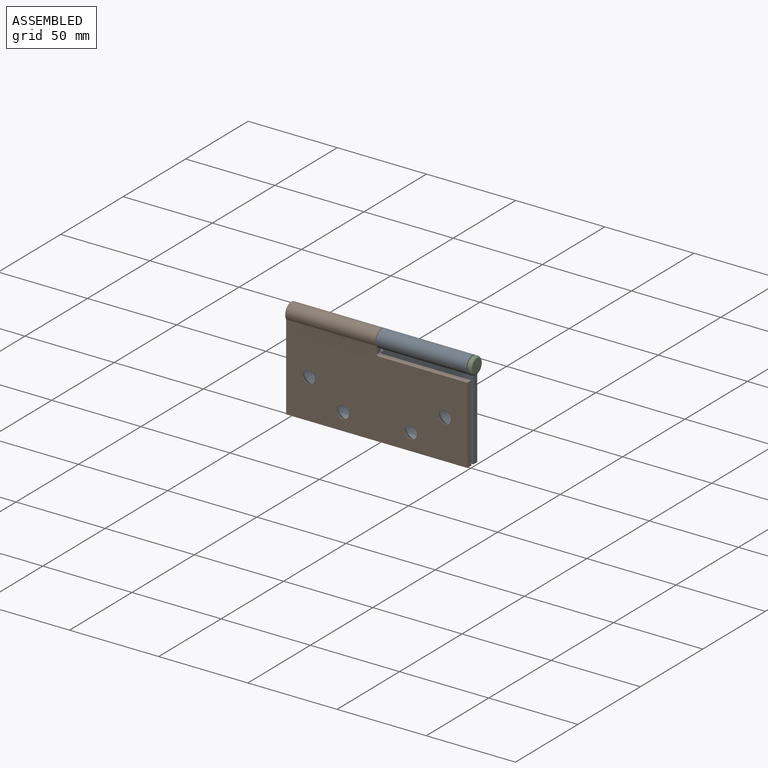
[diagram: assembled view]
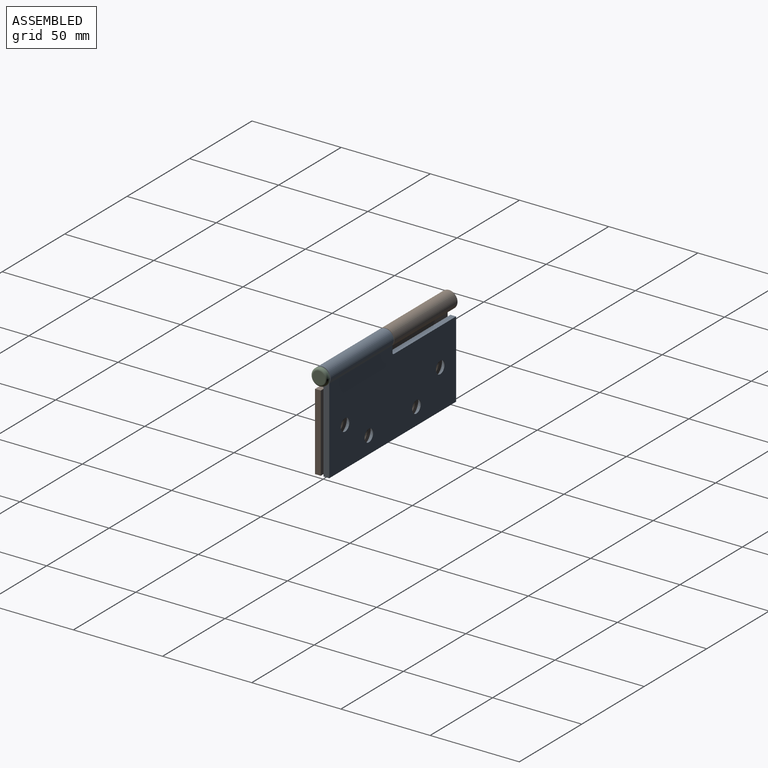
[diagram: assembled view, second angle]
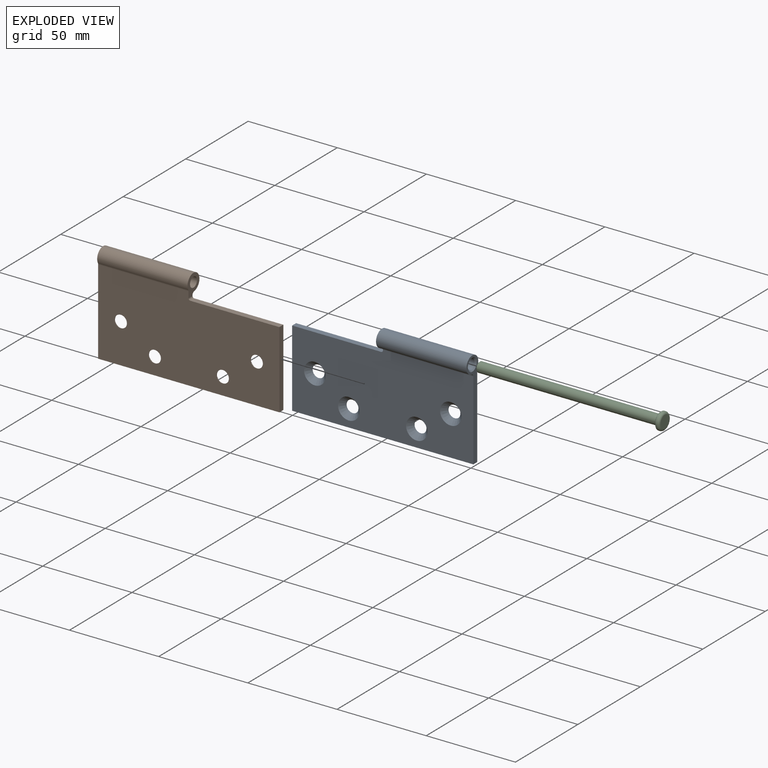
[diagram: exploded view]
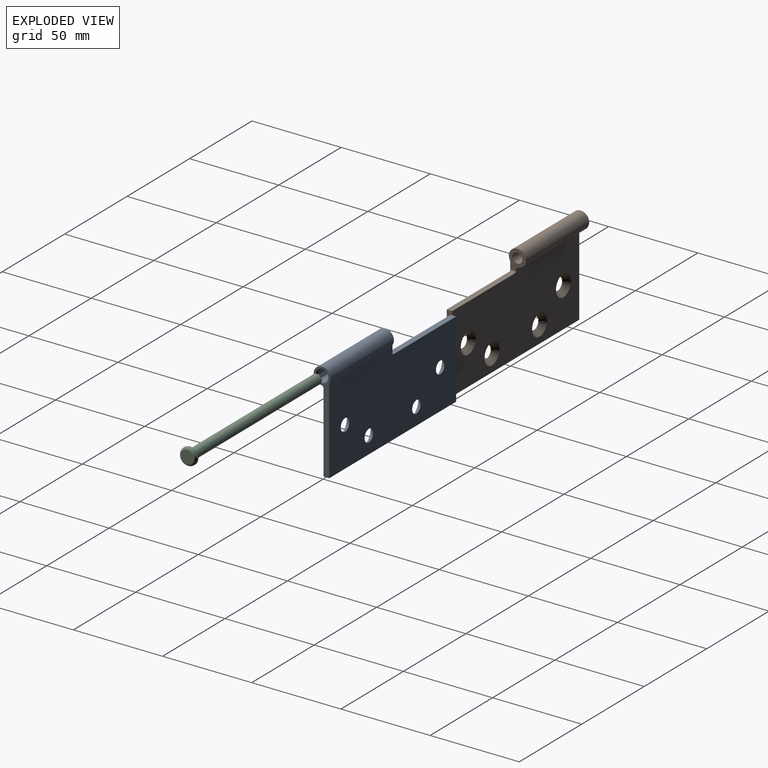
[diagram: exploded view, second angle]
ASSEMBLY  parts=3 mates=2
PART A: 21 faces, bbox 101.6x9.5x55.6 mm
  f0: plane 101.6x3.18mm, normal (0,0,-1), area 322.6mm2, adj f1,f4,f5,f6
  f1: plane 101.6x47.73mm, normal (0,1,0), area 4469.9mm2, adj f0,f5,f6,f7,f9,f10,f11,f12
  f2: cylinder r=4.76mm len=50.67mm, axis (-1,0,0), area 1229mm2, adj f5,f7,f8,f10
  f3: cylinder r=2.79mm len=49.91mm, axis (-1,0,0), area 876.2mm2, adj f10,f20
  f4: plane 101.6x44.5mm, normal (0,-1,0), area 4006.5mm2, adj f0,f5,f6,f8,f9,f10,f15,f16
  f5: plane 55.56x9.53mm, normal (1,0,0), area 180.7mm2, adj f0,f1,f2,f4,f7,f8,f20
  f6: plane 43.18x3.18mm, normal (-1,0,0), area 137.1mm2, adj f0,f1,f4,f9
  f7: cylinder r=1.59mm len=50.67mm, axis (-1,0,0), area 40.7mm2, adj f1,f2,f5,f10
  f8: cylinder r=1.59mm len=50.67mm, axis (-1,0,0), area 116.3mm2, adj f2,f4,f5,f10
  f9: plane 49.91x3.18mm, normal (0,0,1), area 158.5mm2, adj f1,f4,f6,f15
  f10: plane 11.37x9.53mm, normal (-1,0,0), area 55.6mm2, adj f1,f2,f3,f4,f7,f8,f15
  f11: cylinder r=3.43mm len=6.86mm, axis (0,1,0), area 5.5mm2, adj f1,f17
  f12: cylinder r=3.43mm len=6.86mm, axis (0,1,0), area 5.5mm2, adj f1,f18
  f13: cylinder r=3.43mm len=6.86mm, axis (0,1,0), area 5.5mm2, adj f1,f16
  f14: cylinder r=3.43mm len=6.86mm, axis (0,1,0), area 5.5mm2, adj f1,f19
  f15: cylinder r=1.02mm len=3.18mm, axis (0,1,0), area 5.1mm2, adj f1,f4,f9,f10
  f16: cone r=5.97mm half-angle=41deg, axis (0,-1,0), area 114.3mm2, adj f4,f13
  f17: cone r=5.97mm half-angle=41deg, axis (0,-1,0), area 114.3mm2, adj f4,f11
  f18: cone r=5.97mm half-angle=41deg, axis (0,-1,0), area 114.3mm2, adj f4,f12
  f19: cone r=5.97mm half-angle=41deg, axis (0,-1,0), area 114.3mm2, adj f4,f14
  f20: cone r=2.79mm half-angle=45deg, axis (1,0,0), area 21.5mm2, adj f3,f5
PART B: same geometry as A
PART C: 9 faces, bbox 104.1x10.3x10.3 mm
  f0: cylinder r=2.78mm len=100.33mm, axis (-1,0,0), area 1751.3mm2, adj f7,f8
  f1: plane 4.54x4.54mm, normal (-1,0,0), area 16.2mm2, adj f8
  f2: plane 6.99x6.99mm, normal (1,0,0), area 38.3mm2, adj f5
  f3: cylinder r=4.76mm len=9.53mm, axis (-1,0,0), area 22.8mm2, adj f5,f6
  f4: plane 8.51x8.51mm, normal (-1,0,0), area 17.5mm2, adj f6,f7
  f5: torus R=3.49mm, axis (-1,0,0), area 53.9mm2, adj f2,f3
  f6: cone r=4.25mm half-angle=45deg, axis (1,0,0), area 20.4mm2, adj f3,f4
  f7: torus R=3.54mm, axis (1,0,0), area 23mm2, adj f0,f4
  f8: cone r=2.27mm half-angle=45deg, axis (1,0,0), area 11.4mm2, adj f0,f1
PLACE A at identity fixed
PLACE B rot(axis=(0,0,1),180deg) t=(0,0,0)mm
PLACE C at identity
MATE fastened A.f2 <-> C.f0  axis (1,0,0) through (50.8,0,0)mm
MATE revolute B.f2 <-> A.f2  axis (1,0,0) through (-0.13,0,0)mm
